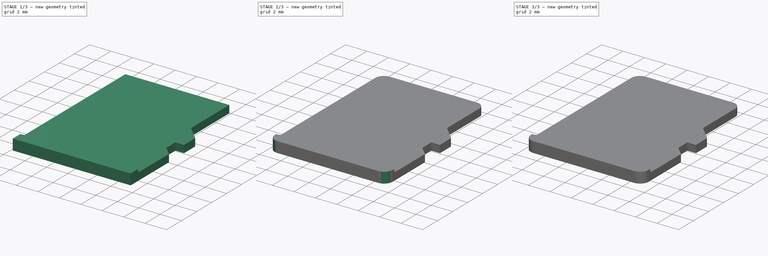
[diagram: build sequence overview — one tinted view per stage of 3, left to right]
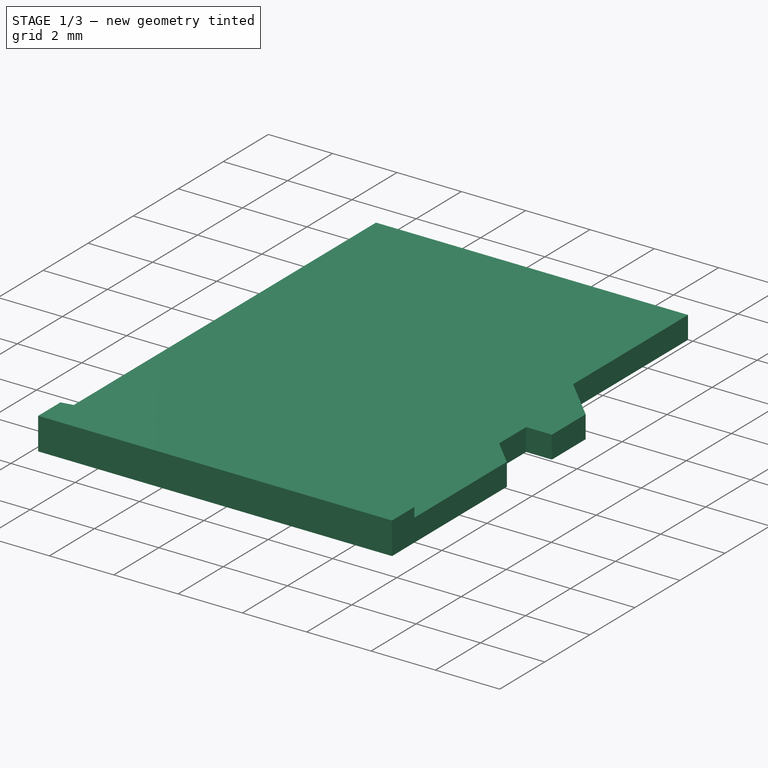
[diagram: stage 1 of 3 — iso view after this stage's code; geometry added in this stage tinted green]
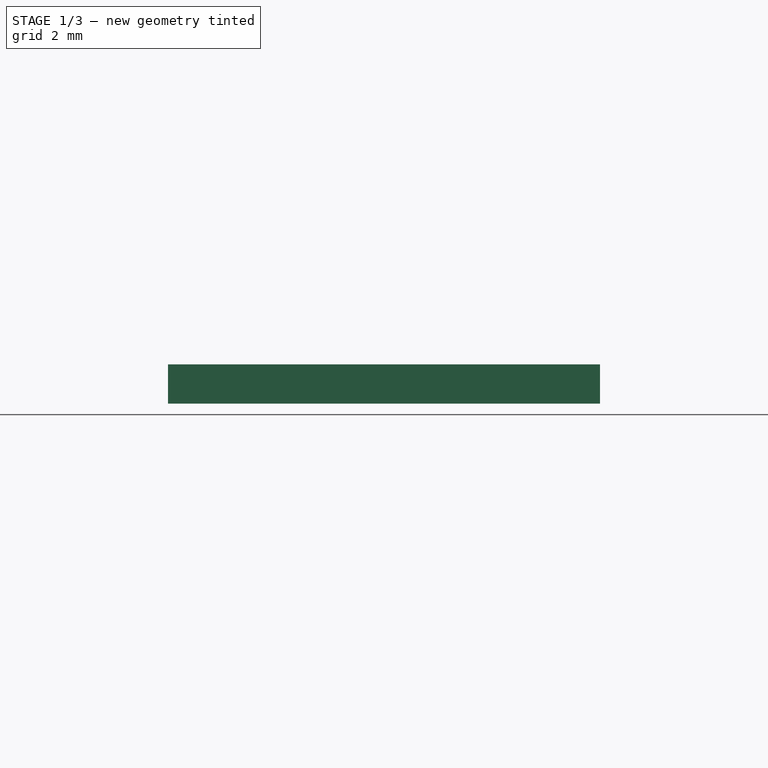
[diagram: stage 1 of 3 — front view after this stage's code; geometry added in this stage tinted green]
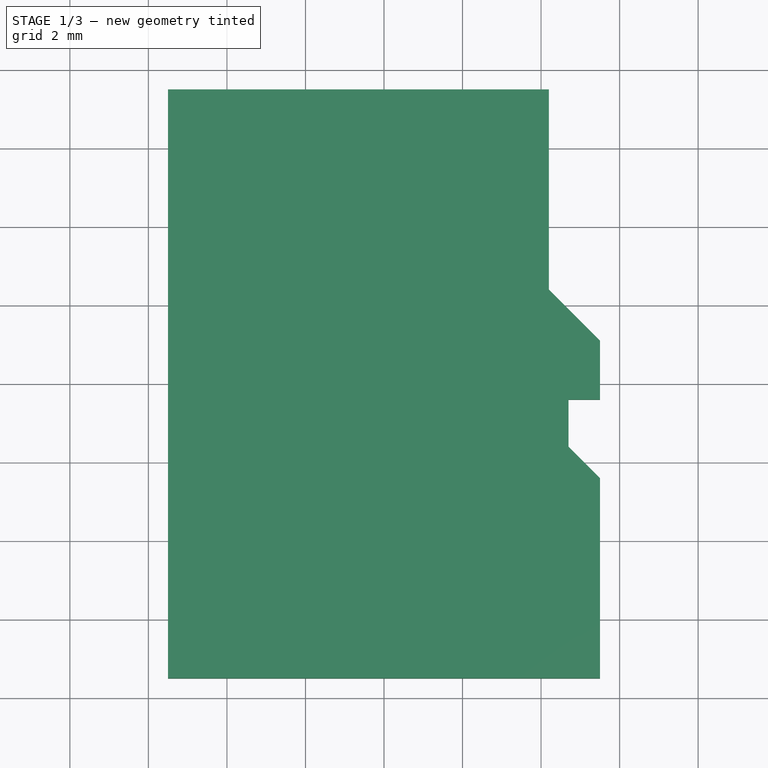
[diagram: stage 1 of 3 — top view after this stage's code; geometry added in this stage tinted green]
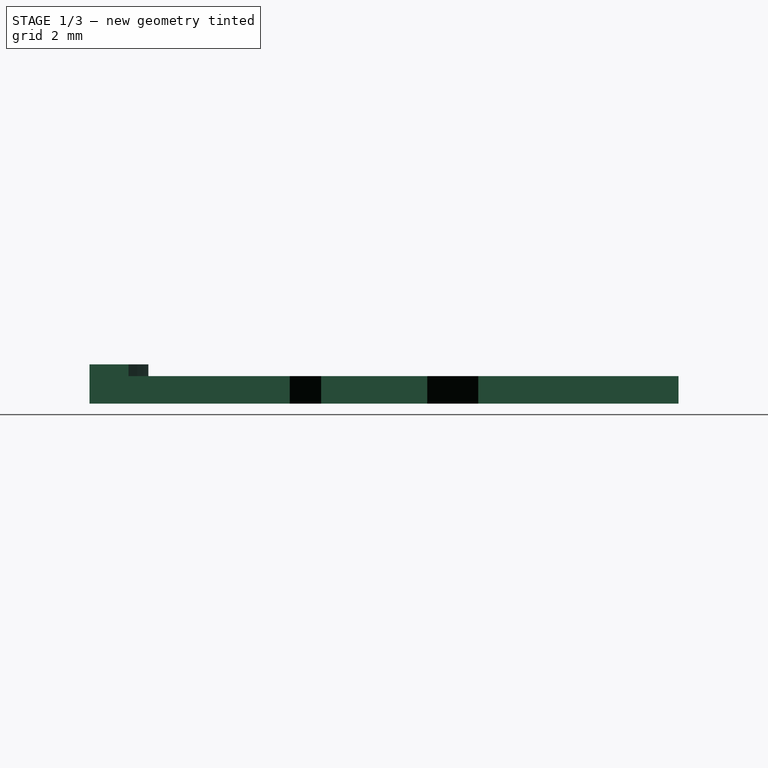
[diagram: stage 1 of 3 — right view after this stage's code; geometry added in this stage tinted green]
FCSTD DOCUMENT  (FreeCAD 0.17R12607 (Git))
Label: MicroSD Card Body
License: All rights reserved
LicenseURL: http://en.wikipedia.org/wiki/All_rights_reserved
objects: Sketcher::SketchObject×4, PartDesign::Fillet×3, PartDesign::Pad×2, PartDesign::Pocket×2, Image::ImagePlane×1, PartDesign::Body×1
note: 16 computed .brp shape members not serialized (recipe doc carries the construction recipe); baked Part::Feature solids carry a one-line shape summary decoded from their .brp

FEATURE [Sketcher::SketchObject] Sketch  label="Body Sketch"
  MapMode = 5
  Support = -> [XY_Plane]
  sketch-geometry (12):
    g0: LineSegment StartX=4.2 StartY=7.5 StartZ=0 EndX=4.2 EndY=2.4 EndZ=0
    g1: LineSegment StartX=4.2 StartY=2.4 StartZ=0 EndX=5.5 EndY=1.1 EndZ=0
    g2: LineSegment StartX=5.5 StartY=1.1 StartZ=0 EndX=5.5 EndY=-0.4 EndZ=0
    g3: LineSegment StartX=5.5 StartY=-0.4 StartZ=0 EndX=4.7 EndY=-0.4 EndZ=0
    g4: LineSegment StartX=4.7 StartY=-0.4 StartZ=0 EndX=4.7 EndY=-1.6 EndZ=0
    g5: LineSegment StartX=4.7 StartY=-1.6 StartZ=0 EndX=5.5 EndY=-2.4 EndZ=0
    g6: LineSegment StartX=4.2 StartY=7.5 StartZ=0 EndX=-5.5 EndY=7.5 EndZ=0
    g7: GeomPoint X=0 Y=-36 Z=0
    g8: ArcOfCircle CenterX=0 CenterY=-36 CenterZ=0 NormalX=0 NormalY=0 NormalZ=1 AngleXU=0 Radius=30 StartAngle=1.38642 EndAngle=1.75517
    g9: GeomPoint X=0 Y=-6 Z=0
    g10: LineSegment StartX=-5.5 StartY=-6.50848 StartZ=0 EndX=-5.5 EndY=7.5 EndZ=0
    g11: LineSegment StartX=5.5 StartY=-6.50848 StartZ=0 EndX=5.5 EndY=-2.4 EndZ=0
  constraints (30):
    c: Vertical(g0)
    c: Coincident(g0,g1)
    c: Coincident(g1,g2)
    c: Vertical(g2)
    c: Coincident(g2,g3)
    c: Coincident(g3,g4)
    c: Vertical(g4)
    c: Coincident(g4,g5)
    c: Horizontal(g6)
    c: DistanceX(g6,g6) = 9.7
    c: Coincident(g0,g6)
    c: Distance(g1,g6) = 6.4
    c: Horizontal(g3)
    c: Angle(g1) = -0.785398
    c: Angle(g5) = -0.785398
    c: Distance(g4,g3) = 1.2
    c: DistanceX(g3,g3) = 0.8
    c: Distance(g2,g6) = 7.9
    c: PointOnObject(g7,g-2)
    c: DistanceY(g-1,g7) = -36
    c: Coincident(g8,g7)
    c: PointOnObject(g9,g-2)
    c: PointOnObject(g9,g8)
    c: DistanceY(g-1,g9) = -6
    c: Coincident(g10,g8)
    c: Coincident(g10,g6)
    c: Vertical(g10)
    c: Coincident(g11,g8)
    c: Coincident(g11,g5)
    c: Vertical(g11)
FEATURE [PartDesign::Pad] Pad  label="Body001"
  Length = 0.7
  Length2 = 100
  Profile = -> Sketch
  Type = 0
FEATURE [Sketcher::SketchObject] Sketch001  label="Handle Sketch"
  ExternalGeometry = -> [Pad]
  MapMode = 5
  Placement = pos=(0,0,0) rot=(1,0,0;3.14159rad)
  Support = -> [Pad]
  sketch-geometry (4):
    g0: ArcOfCircle CenterX=0 CenterY=36 CenterZ=0 NormalX=0 NormalY=0 NormalZ=1 AngleXU=0 Radius=30 StartAngle=4.52801 EndAngle=4.89677
    g1: LineSegment StartX=-5.5 StartY=6.50848 StartZ=0 EndX=-5.5 EndY=7.5 EndZ=0
    g2: LineSegment StartX=-5.5 StartY=7.5 StartZ=0 EndX=5.5 EndY=7.5 EndZ=0
    g3: LineSegment StartX=5.5 StartY=7.5 StartZ=0 EndX=5.5 EndY=6.50848 EndZ=0
  constraints (11):
    c: Coincident(g0,g-3)
    c: Coincident(g0,g-3)
    c: Coincident(g0,g-3)
    c: Coincident(g1,g0)
    c: Vertical(g1)
    c: Coincident(g2,g1)
    c: Horizontal(g2)
    c: Coincident(g3,g2)
    c: Coincident(g3,g0)
    c: Vertical(g3)
    c: DistanceY(g-1,g2) = 7.5
FEATURE [PartDesign::Pad] Pad001  label="Handle"
  BaseFeature = -> Pad
  Length = 1
  Length2 = 100
  Profile = -> Sketch001
  Reversed = true
  Type = 0
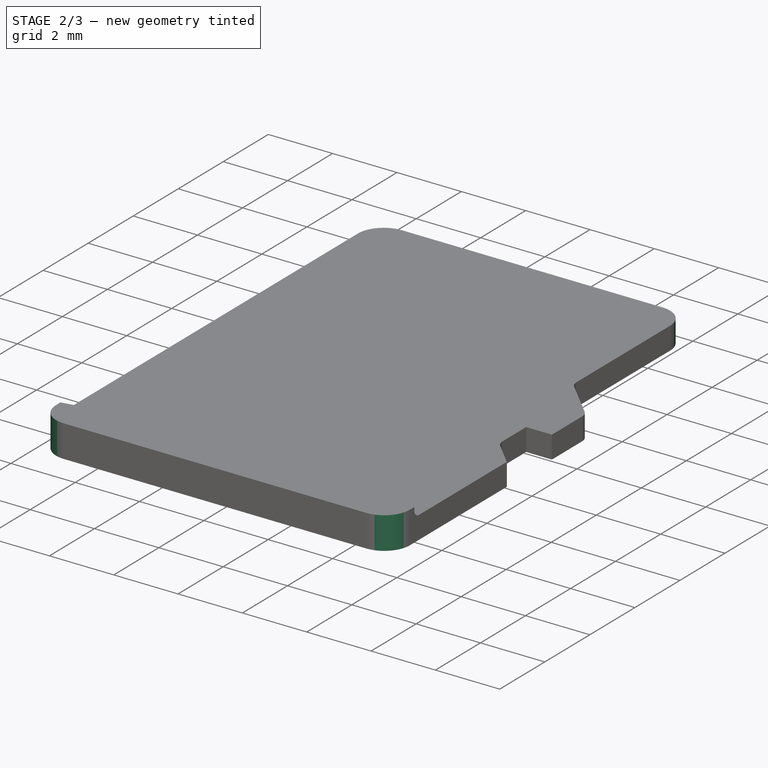
[diagram: stage 2 of 3 — iso view after this stage's code; geometry added in this stage tinted green]
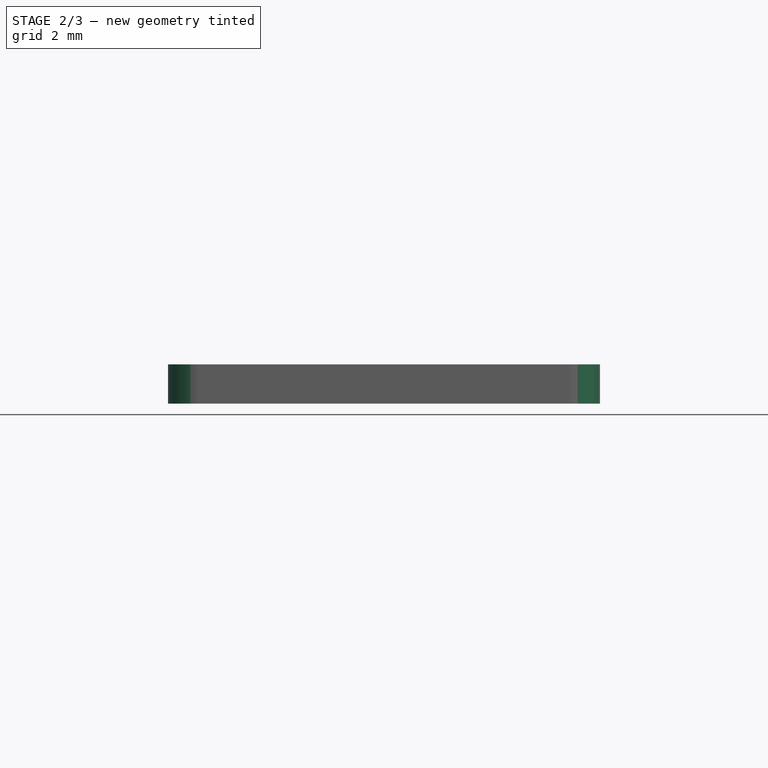
[diagram: stage 2 of 3 — front view after this stage's code; geometry added in this stage tinted green]
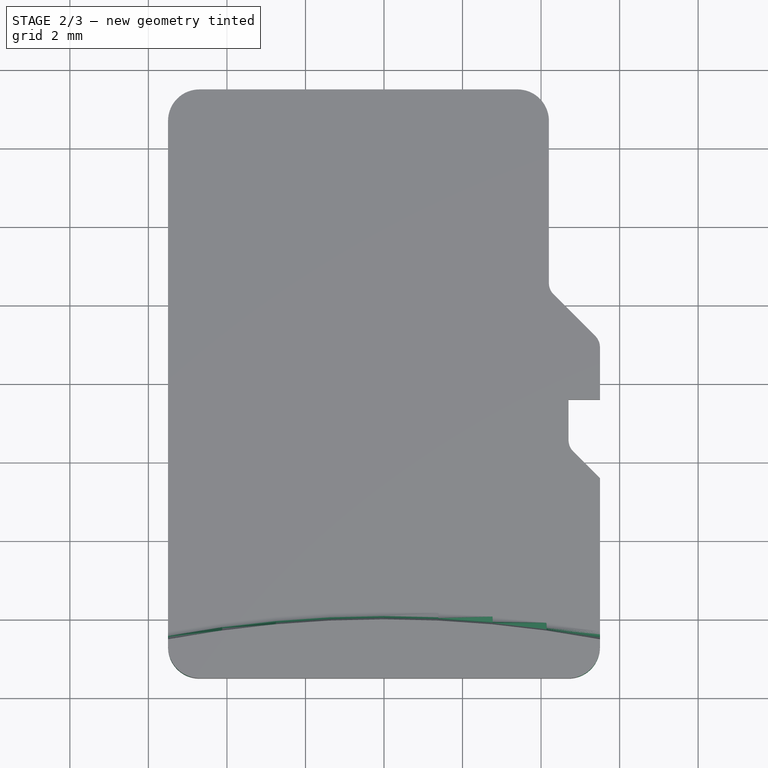
[diagram: stage 2 of 3 — top view after this stage's code; geometry added in this stage tinted green]
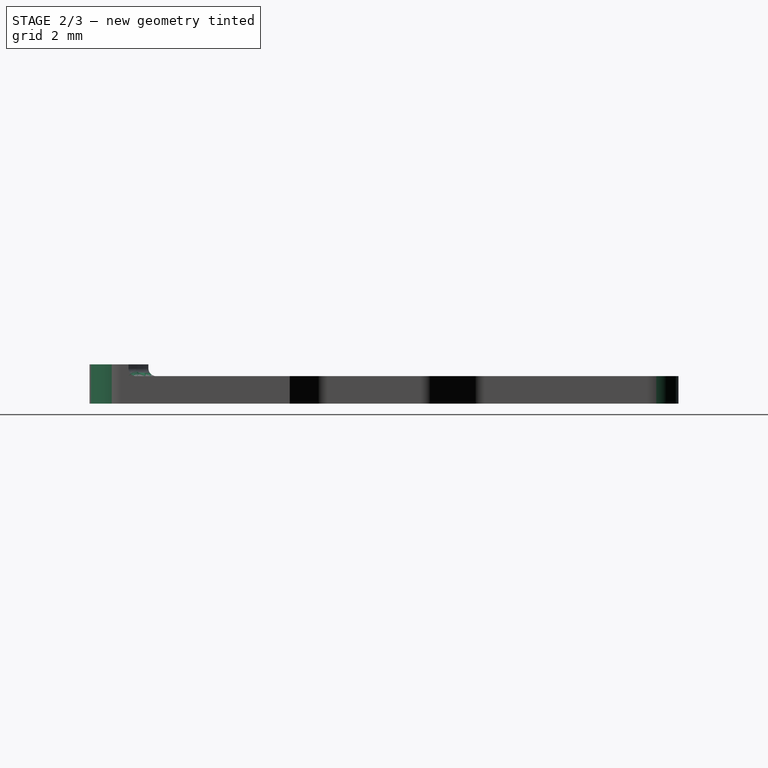
[diagram: stage 2 of 3 — right view after this stage's code; geometry added in this stage tinted green]
FEATURE [PartDesign::Fillet] Fillet  label="Fillet 0.2mm"
  Base = -> Pad001 [Edge18,Edge35]
  BaseFeature = -> Pad001
  Radius = 0.2
FEATURE [PartDesign::Fillet] Fillet001  label="Fillet 0.8mm"
  Base = -> Fillet [Edge44,Edge18,Edge22,Edge3]
  BaseFeature = -> Fillet
  Radius = 0.8
FEATURE [PartDesign::Fillet] Fillet002  label="Fillet 0.4mm"
  Base = -> Fillet001 [Edge42,Edge44,Edge41]
  BaseFeature = -> Fillet001
  Radius = 0.4
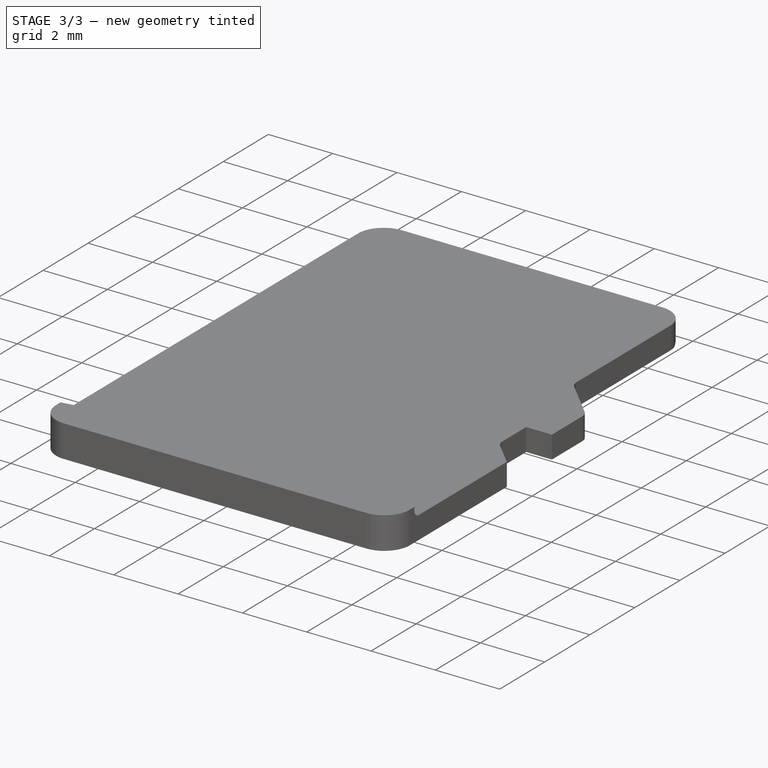
[diagram: stage 3 of 3 — iso view after this stage's code; geometry added in this stage tinted green]
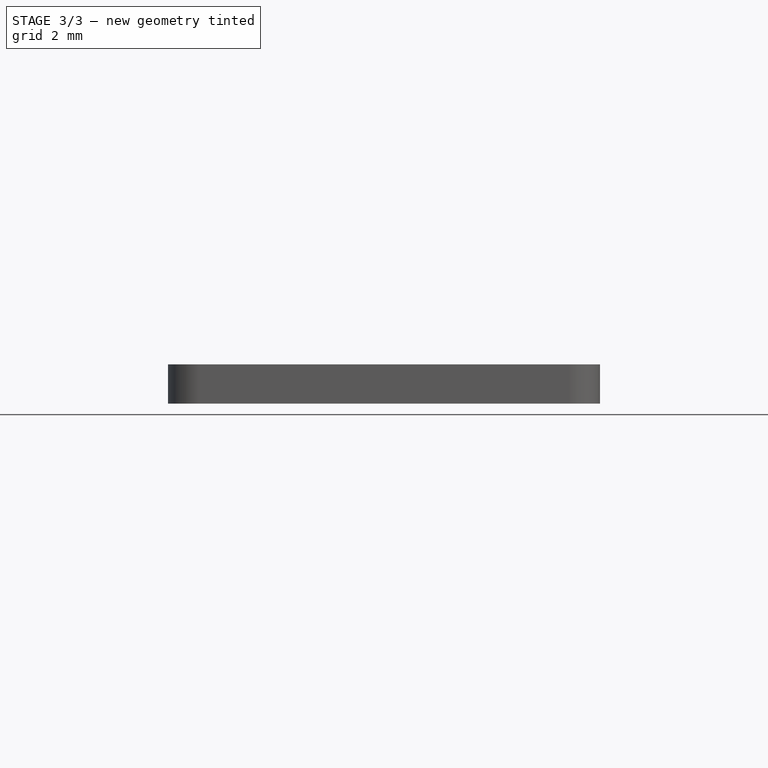
[diagram: stage 3 of 3 — front view after this stage's code; geometry added in this stage tinted green]
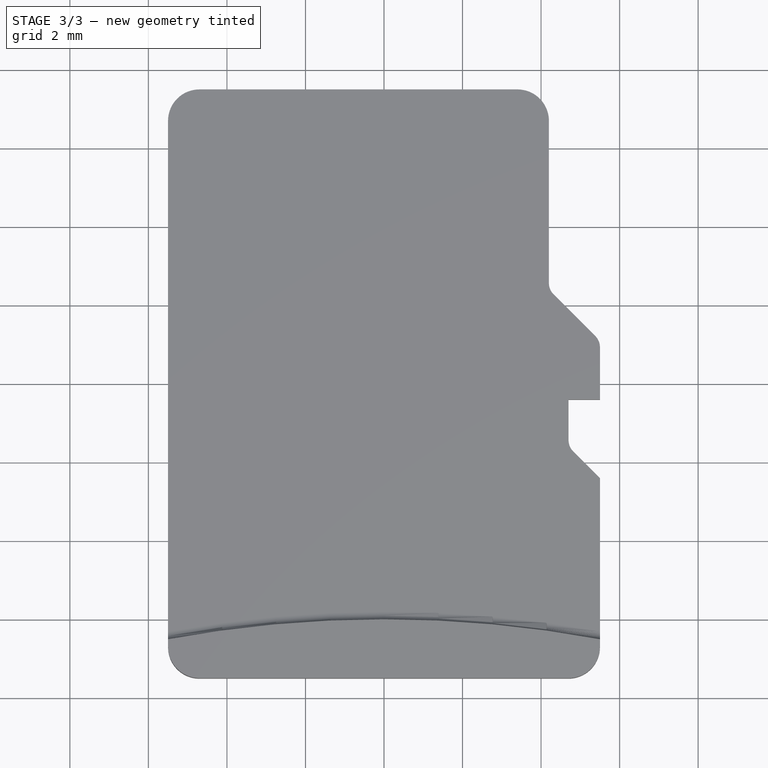
[diagram: stage 3 of 3 — top view after this stage's code; geometry added in this stage tinted green]
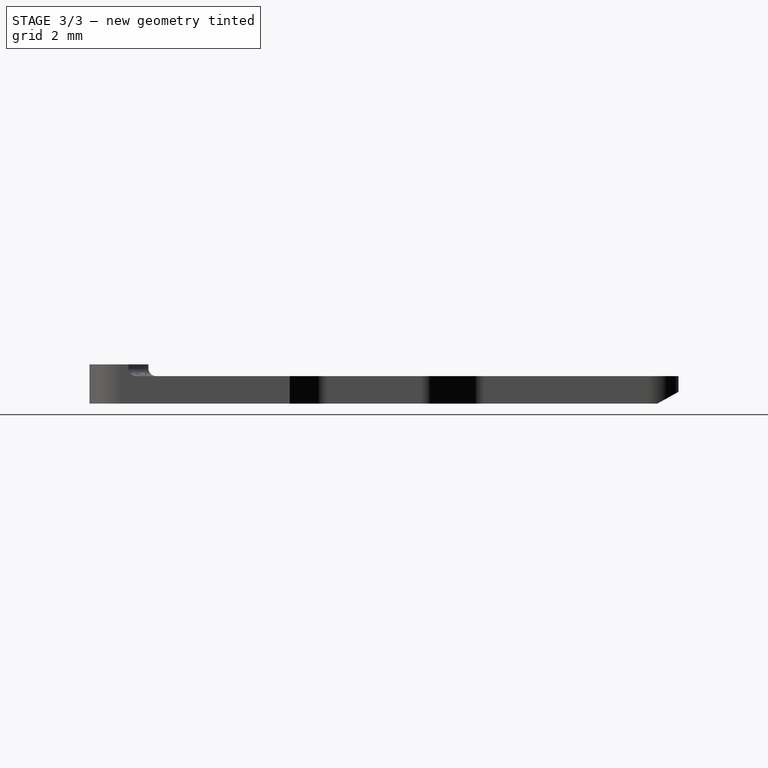
[diagram: stage 3 of 3 — right view after this stage's code; geometry added in this stage tinted green]
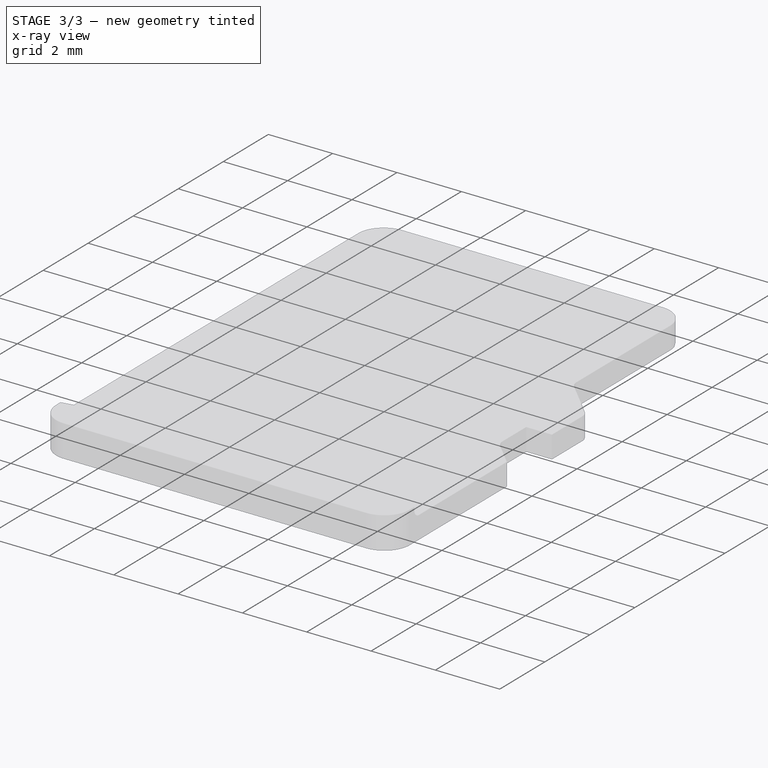
[diagram: stage 3 of 3 — x-ray composite at the iso view; earlier geometry ghosted, this stage's added geometry solid]
FEATURE [Sketcher::SketchObject] Sketch002  label="Chamfer Sketch"
  ExternalGeometry = -> [Fillet002]
  MapMode = 5
  Placement = pos=(-5.5,0,0) rot=(0.57735,-0.57735,-0.57735;2.0944rad)
  Support = -> [Fillet002]
  sketch-geometry (3):
    g0: LineSegment StartX=-7.5 StartY=0 StartZ=0 EndX=-6.96 EndY=0 EndZ=0
    g1: LineSegment StartX=-6.96 StartY=0 StartZ=0 EndX=-7.5 EndY=0.3 EndZ=0
    g2: LineSegment StartX=-7.5 StartY=0.3 StartZ=0 EndX=-7.5 EndY=0 EndZ=0
  constraints (8):
    c: Coincident(g-3,g0)
    c: PointOnObject(g0,g-1)
    c: Coincident(g0,g1)
    c: PointOnObject(g1,g-3)
    c: Coincident(g1,g2)
    c: Coincident(g2,g0)
    c: DistanceX(g0,g0) = 0.54
    c: DistanceY(g2,g2) = 0.3
FEATURE [PartDesign::Pocket] Pocket  label="Chamfer"
  BaseFeature = -> Fillet002
  Length = 11
  Profile = -> Sketch002
  Type = 0
FEATURE [Image::ImagePlane] ImagePlane  label="SanDisk Logo"
  Placement = pos=(0,0,0.71) rot=(0,0,-1;1.5708rad)
  XSize = 15
  YSize = 11
FEATURE [Sketcher::SketchObject] Sketch004  label="Pin Sketch"
  ExternalGeometry = -> [Pocket]
  MapMode = 5
  Placement = pos=(0,0,0) rot=(1,0,0;3.14159rad)
  Support = -> [Pocket]
  sketch-geometry (32):
    g0: LineSegment StartX=-4.9 StartY=-3.5 StartZ=0 EndX=-4.1 EndY=-3.5 EndZ=0
    g1: LineSegment StartX=-4.1 StartY=-3.5 StartZ=0 EndX=-4.1 EndY=-6.4 EndZ=0
    g2: LineSegment StartX=-4.1 StartY=-6.4 StartZ=0 EndX=-4.9 EndY=-6.4 EndZ=0
    g3: LineSegment StartX=-4.9 StartY=-6.4 StartZ=0 EndX=-4.9 EndY=-3.5 EndZ=0
    g4: LineSegment StartX=-3.8 StartY=-3.5 StartZ=0 EndX=-3 EndY=-3.5 EndZ=0
    g5: LineSegment StartX=-3 StartY=-3.5 StartZ=0 EndX=-3 EndY=-6.4 EndZ=0
    g6: LineSegment StartX=-3 StartY=-6.4 StartZ=0 EndX=-3.8 EndY=-6.4 EndZ=0
    g7: LineSegment StartX=-3.8 StartY=-6.4 StartZ=0 EndX=-3.8 EndY=-3.5 EndZ=0
    g8: LineSegment StartX=-2.7 StartY=-3.5 StartZ=0 EndX=-1.9 EndY=-3.5 EndZ=0
    g9: LineSegment StartX=-1.9 StartY=-3.5 StartZ=0 EndX=-1.9 EndY=-6.7 EndZ=0
    g10: LineSegment StartX=-1.9 StartY=-6.7 StartZ=0 EndX=-2.7 EndY=-6.7 EndZ=0
    g11: LineSegment StartX=-2.7 StartY=-6.7 StartZ=0 EndX=-2.7 EndY=-3.5 EndZ=0
    g12: LineSegment StartX=-1.6 StartY=-3.5 StartZ=0 EndX=-0.8 EndY=-3.5 EndZ=0
    g13: LineSegment StartX=-0.8 StartY=-3.5 StartZ=0 EndX=-0.8 EndY=-6.4 EndZ=0
    g14: LineSegment StartX=-0.8 StartY=-6.4 StartZ=0 EndX=-1.6 EndY=-6.4 EndZ=0
    g15: LineSegment StartX=-1.6 StartY=-6.4 StartZ=0 EndX=-1.6 EndY=-3.5 EndZ=0
    g16: LineSegment StartX=-0.5 StartY=-3.5 StartZ=0 EndX=0.3 EndY=-3.5 EndZ=0
    g17: LineSegment StartX=0.3 StartY=-3.5 StartZ=0 EndX=0.3 EndY=-6.7 EndZ=0
    g18: LineSegment StartX=0.3 StartY=-6.7 StartZ=0 EndX=-0.5 EndY=-6.7 EndZ=0
    g19: LineSegment StartX=-0.5 StartY=-6.7 StartZ=0 EndX=-0.5 EndY=-3.5 EndZ=0
    g20: LineSegment StartX=0.6 StartY=-3.5 StartZ=0 EndX=1.4 EndY=-3.5 EndZ=0
    g21: LineSegment StartX=1.4 StartY=-3.5 StartZ=0 EndX=1.4 EndY=-6.4 EndZ=0
    g22: LineSegment StartX=1.4 StartY=-6.4 StartZ=0 EndX=0.6 EndY=-6.4 EndZ=0
    g23: LineSegment StartX=0.6 StartY=-6.4 StartZ=0 EndX=0.6 EndY=-3.5 EndZ=0
    g24: LineSegment StartX=1.7 StartY=-3.5 StartZ=0 EndX=2.5 EndY=-3.5 EndZ=0
    g25: LineSegment StartX=2.5 StartY=-3.5 StartZ=0 EndX=2.5 EndY=-6.4 EndZ=0
    g26: LineSegment StartX=2.5 StartY=-6.4 StartZ=0 EndX=1.7 EndY=-6.4 EndZ=0
    g27: LineSegment StartX=1.7 StartY=-6.4 StartZ=0 EndX=1.7 EndY=-3.5 EndZ=0
    g28: LineSegment StartX=2.8 StartY=-3.5 StartZ=0 EndX=3.6 EndY=-3.5 EndZ=0
    g29: LineSegment StartX=3.6 StartY=-3.5 StartZ=0 EndX=3.6 EndY=-6.4 EndZ=0
    g30: LineSegment StartX=3.6 StartY=-6.4 StartZ=0 EndX=2.8 EndY=-6.4 EndZ=0
    g31: LineSegment StartX=2.8 StartY=-6.4 StartZ=0 EndX=2.8 EndY=-3.5 EndZ=0
  constraints (96):
    c: Coincident(g0,g1)
    c: Coincident(g1,g2)
    c: Coincident(g2,g3)
    c: Coincident(g3,g0)
    c: Horizontal(g0)
    c: Horizontal(g2)
    c: Vertical(g1)
    c: Vertical(g3)
    c: Coincident(g4,g5)
    c: Coincident(g5,g6)
    c: Coincident(g6,g7)
    c: Coincident(g7,g4)
    c: Horizontal(g4)
    c: Horizontal(g6)
    c: Vertical(g5)
    c: Vertical(g7)
    c: Coincident(g8,g9)
    c: Coincident(g9,g10)
    c: Coincident(g10,g11)
    c: Coincident(g11,g8)
    c: Horizontal(g8)
    c: Horizontal(g10)
    c: Vertical(g9)
    c: Vertical(g11)
    c: Coincident(g12,g13)
    c: Coincident(g13,g14)
    c: Coincident(g14,g15)
    c: Coincident(g15,g12)
    c: Horizontal(g12)
    c: Horizontal(g14)
    c: Vertical(g13)
    c: Vertical(g15)
    c: Coincident(g16,g17)
    c: Coincident(g17,g18)
    c: Coincident(g18,g19)
    c: Coincident(g19,g16)
    c: Horizontal(g16)
    c: Horizontal(g18)
    c: Vertical(g17)
    c: Vertical(g19)
    c: Coincident(g20,g21)
    c: Coincident(g21,g22)
    c: Coincident(g22,g23)
    c: Coincident(g23,g20)
    c: Horizontal(g20)
    c: Horizontal(g22)
    c: Vertical(g21)
    c: Vertical(g23)
    c: Coincident(g24,g25)
    c: Coincident(g25,g26)
    c: Coincident(g26,g27)
    c: Coincident(g27,g24)
    c: Horizontal(g24)
    c: Horizontal(g26)
    c: Vertical(g25)
    c: Vertical(g27)
    c: Coincident(g28,g29)
    c: Coincident(g29,g30)
    c: Coincident(g30,g31)
    c: Coincident(g31,g28)
    c: Horizontal(g28)
    c: Horizontal(g30)
    c: Vertical(g29)
    c: Vertical(g31)
    c: Equal(g2,g6)
    c: Equal(g6,g10)
    c: Equal(g10,g14)
    c: Equal(g14,g18)
    c: Equal(g18,g22)
    c: Equal(g22,g26)
    c: Equal(g26,g30)
    c: Equal(g3,g7)
    c: Equal(g7,g15)
    c: Equal(g15,g23)
    c: Equal(g23,g27)
    c: Equal(g27,g31)
    c: Equal(g11,g19)
    c: Distance(g2,g-3) = 1.1
    c: Distance(g6,g-3) = 1.1
    c: Distance(g14,g-3) = 1.1
    c: Distance(g22,g-3) = 1.1
    c: Distance(g26,g-3) = 1.1
    c: Distance(g30,g-3) = 1.1
    c: Distance(g0,g7) = 1.1
    c: Distance(g4,g11) = 1.1
    c: Distance(g8,g15) = 1.1
    c: Distance(g12,g19) = 1.1
    c: Distance(g16,g23) = 1.1
    c: Distance(g20,g27) = 1.1
    c: Distance(g24,g31) = 1.1
    c: DistanceY(g3,g3) = 2.9
    c: Distance(g10,g-3) = 0.8
    c: Distance(g18,g-3) = 0.8
    c: DistanceY(g17,g17) = 3.2
    c: DistanceX(g2,g2) = 0.8
    c: Distance(g-3,g3) = 0.2
FEATURE [PartDesign::Pocket] Pocket001  label="Pins"
  BaseFeature = -> Pocket
  Length = 0.05
  Profile = -> Sketch004
  Type = 0
FEATURE [PartDesign::Body] Body
  Group = -> [Sketch,Pad,Sketch001,Pad001,Fillet,Fillet001,Fillet002,Sketch002,Pocket,Sketch004,Pocket001]
  Origin = -> Origin
  Tip = -> Pocket001
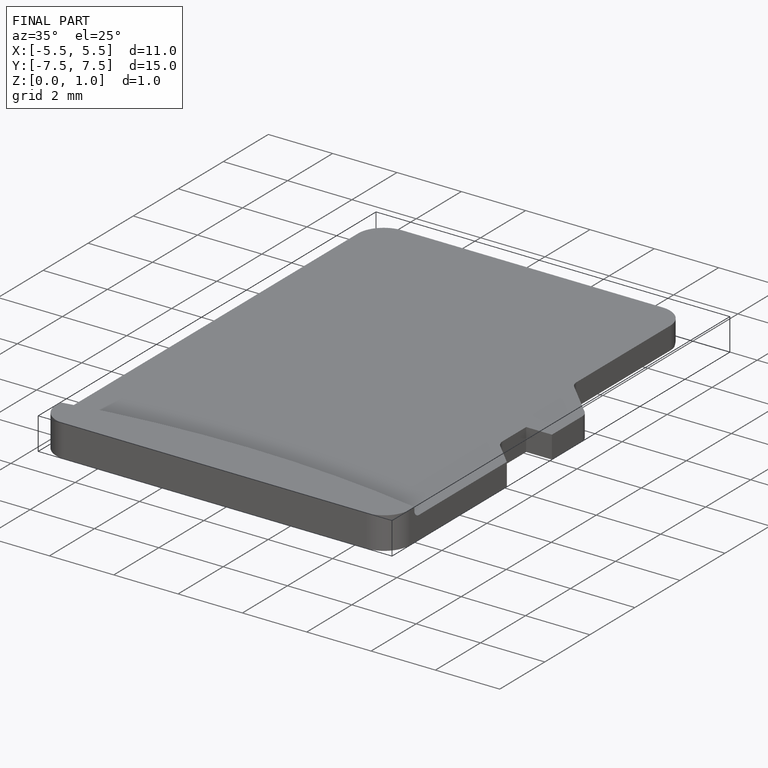
[diagram: finished part — iso view with bounding-box wireframe]
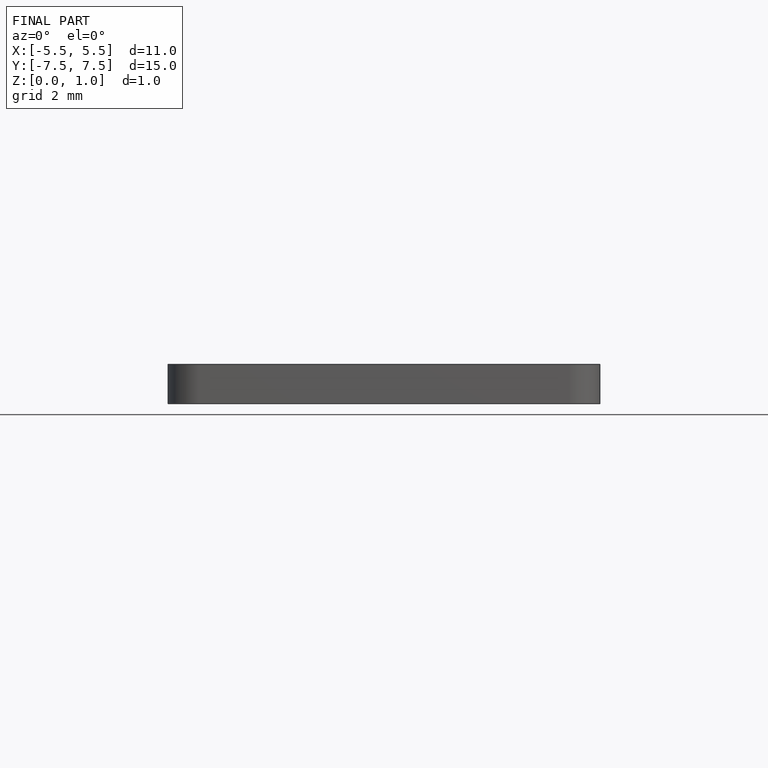
[diagram: finished part — front view with bounding-box wireframe]
